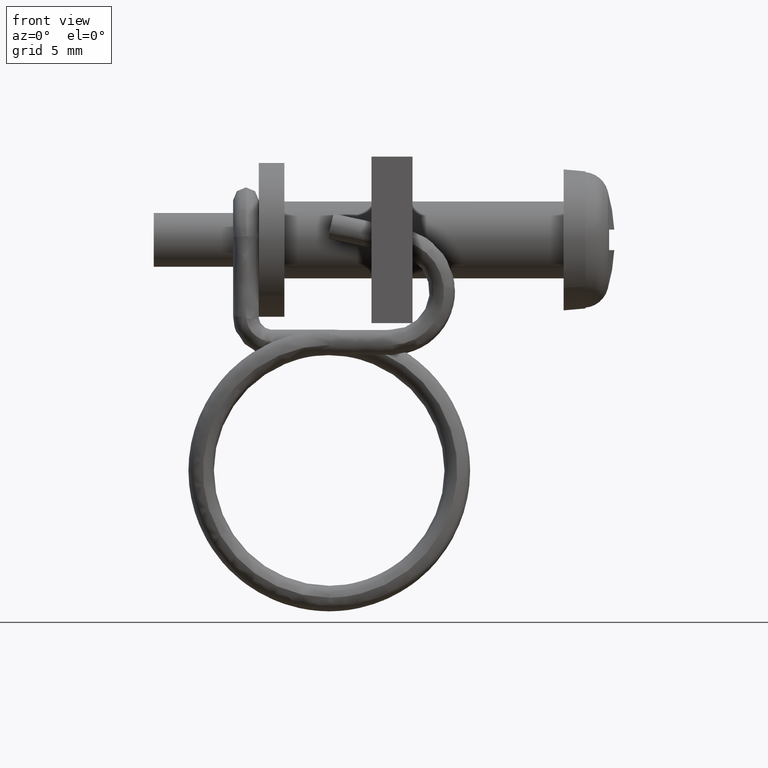
[diagram: clean part render]
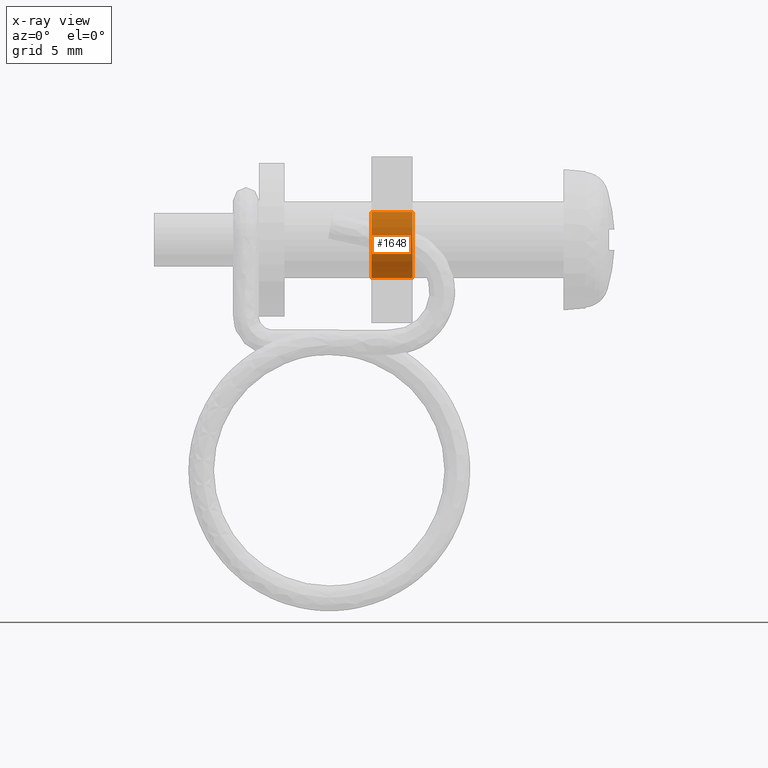
[diagram: x-ray — body ghosted, one internal face saturated and labeled with its STEP entity id]
A machine part, front view, then the same camera in x-ray: the body is ghosted and one INTERNAL B-rep face — a face not visible from any outside direction — is saturated and labeled: STEP entity #1648.
In plain terms, the highlighted face is a freeform B-spline surface patch.
Its self-contained STEP definition (entity closure, byte-faithful):
#1537=CARTESIAN_POINT('',(-7.539999999999997,-1.032531863540631,1.088061556518261));
#1538=CARTESIAN_POINT('',(-7.539999999999997,-2.120593420059062,0.055529692977630));
#1539=CARTESIAN_POINT('',(-7.539999999999997,-1.088061556518431,-1.032531863540801));
#1540=CARTESIAN_POINT('',(-7.539999999999997,-0.055529692977800,-2.120593420059232));
#1541=CARTESIAN_POINT('',(-7.539999999999997,1.032531863540631,-1.088061556518602));
#1542=CARTESIAN_POINT('',(-5.859000000000133,-1.032531863540631,1.088061556518261));
#1543=CARTESIAN_POINT('',(-5.859000000000133,-2.120593420059062,0.055529692977630));
#1544=CARTESIAN_POINT('',(-5.859000000000133,-1.088061556518431,-1.032531863540801));
#1545=CARTESIAN_POINT('',(-5.859000000000133,-0.055529692977800,-2.120593420059232));
#1546=CARTESIAN_POINT('',(-5.859000000000133,1.032531863540631,-1.088061556518602));
#1554=(BOUNDED_SURFACE()B_SPLINE_SURFACE(2,1,((#1537,#1542),(#1538,#1543),(#1539,#1544),(#1540,#1545),(#1541,#1546)),.UNSPECIFIED.,.F.,.F.,.U.)B_SPLINE_SURFACE_WITH_KNOTS((3,2,3),(2,2),(3.141592653589793,4.712388980384690,6.283185307179586),(0.0,1.0),.UNSPECIFIED.)GEOMETRIC_REPRESENTATION_ITEM()RATIONAL_B_SPLINE_SURFACE(((1.0,1.0),(0.707106781186548,0.707106781186548),(1.0,1.0),(0.707106781186548,0.707106781186548),(1.0,1.0)))REPRESENTATION_ITEM('')SURFACE());
#1555=CARTESIAN_POINT('',(-5.900000000001095,-1.032531797535872,1.088061513649614));
#1556=VERTEX_POINT('',#1555);
#1557=CARTESIAN_POINT('',(-5.900000000000131,-1.499999999999969,-0.000000306542247));
#1558=VERTEX_POINT('',#1557);
#1559=CARTESIAN_POINT('',(-5.900000000001095,-1.032531797535872,1.088061513649614));
#1560=CARTESIAN_POINT('',(-5.900000000001033,-1.106129832539798,1.018239980555063));
#1561=CARTESIAN_POINT('',(-5.900000000000914,-1.226600928167503,0.878077534558320));
#1562=CARTESIAN_POINT('',(-5.900000000000677,-1.373615478559582,0.625028328913104));
#1563=CARTESIAN_POINT('',(-5.900000000000413,-1.474550840499157,0.336035432404864));
#1564=CARTESIAN_POINT('',(-5.900000000000254,-1.500023612764805,0.114129939488918));
#1565=CARTESIAN_POINT('',(-5.900000000000131,-1.499999999999969,-0.000000306542247));
#1566=B_SPLINE_CURVE_WITH_KNOTS('',3,(#1559,#1560,#1561,#1562,#1563,#1564,#1565),.UNSPECIFIED.,.F.,.U.,(4,1,1,1,4),(8.304054E-009,0.304343907042473,0.551625936408508,0.874988564327312,1.217375603267834),.UNSPECIFIED.);
#1567=EDGE_CURVE('',#1556,#1558,#1566,.T.);
#1568=ORIENTED_EDGE('',*,*,#1567,.T.);
#1569=CARTESIAN_POINT('',(-5.900000000000130,0.0,-1.500000000000171));
#1570=VERTEX_POINT('',#1569);
#1571=CARTESIAN_POINT('',(-5.900000000000131,-1.499999999999969,-0.000000306542247));
#1572=CARTESIAN_POINT('',(-5.900000000000142,-1.500042704179205,-0.134993819110151));
#1573=CARTESIAN_POINT('',(-5.900000000000113,-1.468308313607464,-0.368136428588233));
#1574=CARTESIAN_POINT('',(-5.900000000000148,-1.352906690030002,-0.667259607449130));
#1575=CARTESIAN_POINT('',(-5.900000000000124,-1.207521510338877,-0.903197800757245));
#1576=CARTESIAN_POINT('',(-5.900000000000131,-1.002040813496824,-1.132776335230940));
#1577=CARTESIAN_POINT('',(-5.900000000000168,-0.750222372619721,-1.312436452338162));
#1578=CARTESIAN_POINT('',(-5.900000000000111,-0.404916263680191,-1.460458063210951));
#1579=CARTESIAN_POINT('',(-5.900000000000127,-0.159547670841933,-1.500082084193493));
#1580=CARTESIAN_POINT('',(-5.900000000000130,0.0,-1.500000000000171));
#1581=B_SPLINE_CURVE_WITH_KNOTS('',3,(#1571,#1572,#1573,#1574,#1575,#1576,#1577,#1578,#1579,#1580),.UNSPECIFIED.,.F.,.U.,(4,1,1,1,1,1,1,4),(0.000000030715697,0.404971545806416,0.699500053865000,0.957216848251597,1.233324215148115,1.619890750688521,1.877604828102513,2.356209101540947),.UNSPECIFIED.);
#1582=EDGE_CURVE('',#1558,#1570,#1581,.T.);
#1583=ORIENTED_EDGE('',*,*,#1582,.T.);
#1584=CARTESIAN_POINT('',(-5.900000000001093,1.032531797535873,-1.088061513649955));
#1585=VERTEX_POINT('',#1584);
#1586=CARTESIAN_POINT('',(-5.900000000000130,0.0,-1.500000000000171));
#1587=CARTESIAN_POINT('',(-5.900000000000244,0.118627621835350,-1.500019789771499));
#1588=CARTESIAN_POINT('',(-5.900000000000452,0.373680292147129,-1.469618145456077));
#1589=CARTESIAN_POINT('',(-5.900000000000883,0.730383987527614,-1.329750820967652));
#1590=CARTESIAN_POINT('',(-5.900000000000935,0.942195047924228,-1.173819824457009));
#1591=CARTESIAN_POINT('',(-5.900000000001093,1.032531797535873,-1.088061513649955));
#1592=B_SPLINE_CURVE_WITH_KNOTS('',3,(#1586,#1587,#1588,#1589,#1590,#1591),.UNSPECIFIED.,.F.,.U.,(4,1,1,4),(6.853292E-009,0.355886883613740,0.765152420366507,1.138833966742657),.UNSPECIFIED.);
#1593=EDGE_CURVE('',#1570,#1585,#1592,.T.);
#1594=ORIENTED_EDGE('',*,*,#1593,.T.);
#1595=CARTESIAN_POINT('',(-7.500000000000000,1.032531797698483,-1.088061513495644));
#1596=VERTEX_POINT('',#1595);
#1597=CARTESIAN_POINT('',(-7.500000000000000,1.032531797698483,-1.088061513495644));
#1598=CARTESIAN_POINT('',(-5.900000000001093,1.032531797535873,-1.088061513649955));
#1599=QUASI_UNIFORM_CURVE('',1,(#1597,#1598),.UNSPECIFIED.,.F.,.U.);
#1600=EDGE_CURVE('',#1596,#1585,#1599,.T.);
#1601=ORIENTED_EDGE('',*,*,#1600,.F.);
#1602=CARTESIAN_POINT('',(-7.500000000000000,0.0,-1.500000000000171));
#1603=VERTEX_POINT('',#1602);
#1604=CARTESIAN_POINT('',(-7.500000000000000,0.0,-1.500000000000171));
#1605=CARTESIAN_POINT('',(-7.499999999999995,0.136427336360616,-1.500043167087256));
#1606=CARTESIAN_POINT('',(-7.500000000000010,0.391451463887105,-1.464966178422956));
#1607=CARTESIAN_POINT('',(-7.499999999999995,0.744820204903748,-1.319098915898169));
#1608=CARTESIAN_POINT('',(-7.499999999999974,0.942197936046992,-1.173826337963986));
#1609=CARTESIAN_POINT('',(-7.500000000000000,1.032531797698483,-1.088061513495644));
#1610=B_SPLINE_CURVE_WITH_KNOTS('',3,(#1604,#1605,#1606,#1607,#1608,#1609),.UNSPECIFIED.,.F.,.U.,(4,1,1,4),(6.853623E-009,0.409270329318171,0.765152420517206,1.138833966966834),.UNSPECIFIED.);
#1611=EDGE_CURVE('',#1603,#1596,#1610,.T.);
#1612=ORIENTED_EDGE('',*,*,#1611,.F.);
#1613=CARTESIAN_POINT('',(-7.500000000000001,-1.499999999999969,-0.000000306542247));
#1614=VERTEX_POINT('',#1613);
#1615=CARTESIAN_POINT('',(-7.500000000000001,-1.499999999999969,-0.000000306542247));
#1616=CARTESIAN_POINT('',(-7.500000000000015,-1.500021620642529,-0.110447268127078));
#1617=CARTESIAN_POINT('',(-7.500000000000004,-1.477531618717361,-0.312923043687596));
#1618=CARTESIAN_POINT('',(-7.499999999999977,-1.392169660075454,-0.576746098622213));
#1619=CARTESIAN_POINT('',(-7.500000000000035,-1.281653029490268,-0.789733044704234));
#1620=CARTESIAN_POINT('',(-7.500000000000009,-1.123089973686601,-1.009156000981568));
#1621=CARTESIAN_POINT('',(-7.499999999999949,-0.928330447967564,-1.190077814387977));
#1622=CARTESIAN_POINT('',(-7.500000000000074,-0.693596768627995,-1.336671631859936));
#1623=CARTESIAN_POINT('',(-7.499999999999954,-0.404927596589900,-1.460478822622320));
#1624=CARTESIAN_POINT('',(-7.499999999999996,-0.159544014296698,-1.500075416690225));
#1625=CARTESIAN_POINT('',(-7.500000000000000,0.0,-1.500000000000171));
#1626=B_SPLINE_CURVE_WITH_KNOTS('',3,(#1615,#1616,#1617,#1618,#1619,#1620,#1621,#1622,#1623,#1624,#1625),.UNSPECIFIED.,.F.,.U.,(4,1,1,1,1,1,1,1,4),(0.000000030715697,0.331336866893046,0.607460509203609,0.828357660251179,1.049252507287689,1.417405747333473,1.619890750688521,1.877604828102513,2.356209101540947),.UNSPECIFIED.);
#1627=EDGE_CURVE('',#1614,#1603,#1626,.T.);
#1628=ORIENTED_EDGE('',*,*,#1627,.F.);
#1629=CARTESIAN_POINT('',(-7.500000000000001,-1.032531797698483,1.088061513495302));
#1630=VERTEX_POINT('',#1629);
#1631=CARTESIAN_POINT('',(-7.500000000000001,-1.032531797698483,1.088061513495302));
#1632=CARTESIAN_POINT('',(-7.499999999999996,-1.119936907169889,1.005152965415645));
#1633=CARTESIAN_POINT('',(-7.500000000000012,-1.237954297633244,0.862417703903057));
#1634=CARTESIAN_POINT('',(-7.499999999999998,-1.364472626815891,0.634724798426913));
#1635=CARTESIAN_POINT('',(-7.500000000000044,-1.467378624948866,0.367716938173818));
#1636=CARTESIAN_POINT('',(-7.499999999999948,-1.500059530581625,0.145838801138541));
#1637=CARTESIAN_POINT('',(-7.500000000000001,-1.499999999999969,-0.000000306542247));
#1638=B_SPLINE_CURVE_WITH_KNOTS('',3,(#1631,#1632,#1633,#1634,#1635,#1636,#1637),.UNSPECIFIED.,.F.,.U.,(4,1,1,1,4),(8.303930E-009,0.361409363594792,0.551625936306865,0.779878648548458,1.217375603043655),.UNSPECIFIED.);
#1639=EDGE_CURVE('',#1630,#1614,#1638,.T.);
#1640=ORIENTED_EDGE('',*,*,#1639,.F.);
#1641=CARTESIAN_POINT('',(-7.500000000000001,-1.032531797698483,1.088061513495302));
#1642=CARTESIAN_POINT('',(-5.900000000001095,-1.032531797535872,1.088061513649614));
#1643=QUASI_UNIFORM_CURVE('',1,(#1641,#1642),.UNSPECIFIED.,.F.,.U.);
#1644=EDGE_CURVE('',#1630,#1556,#1643,.T.);
#1645=ORIENTED_EDGE('',*,*,#1644,.T.);
#1646=EDGE_LOOP('',(#1568,#1583,#1594,#1601,#1612,#1628,#1640,#1645));
#1647=FACE_OUTER_BOUND('',#1646,.T.);
#1648=ADVANCED_FACE('',(#1647),#1554,.F.);